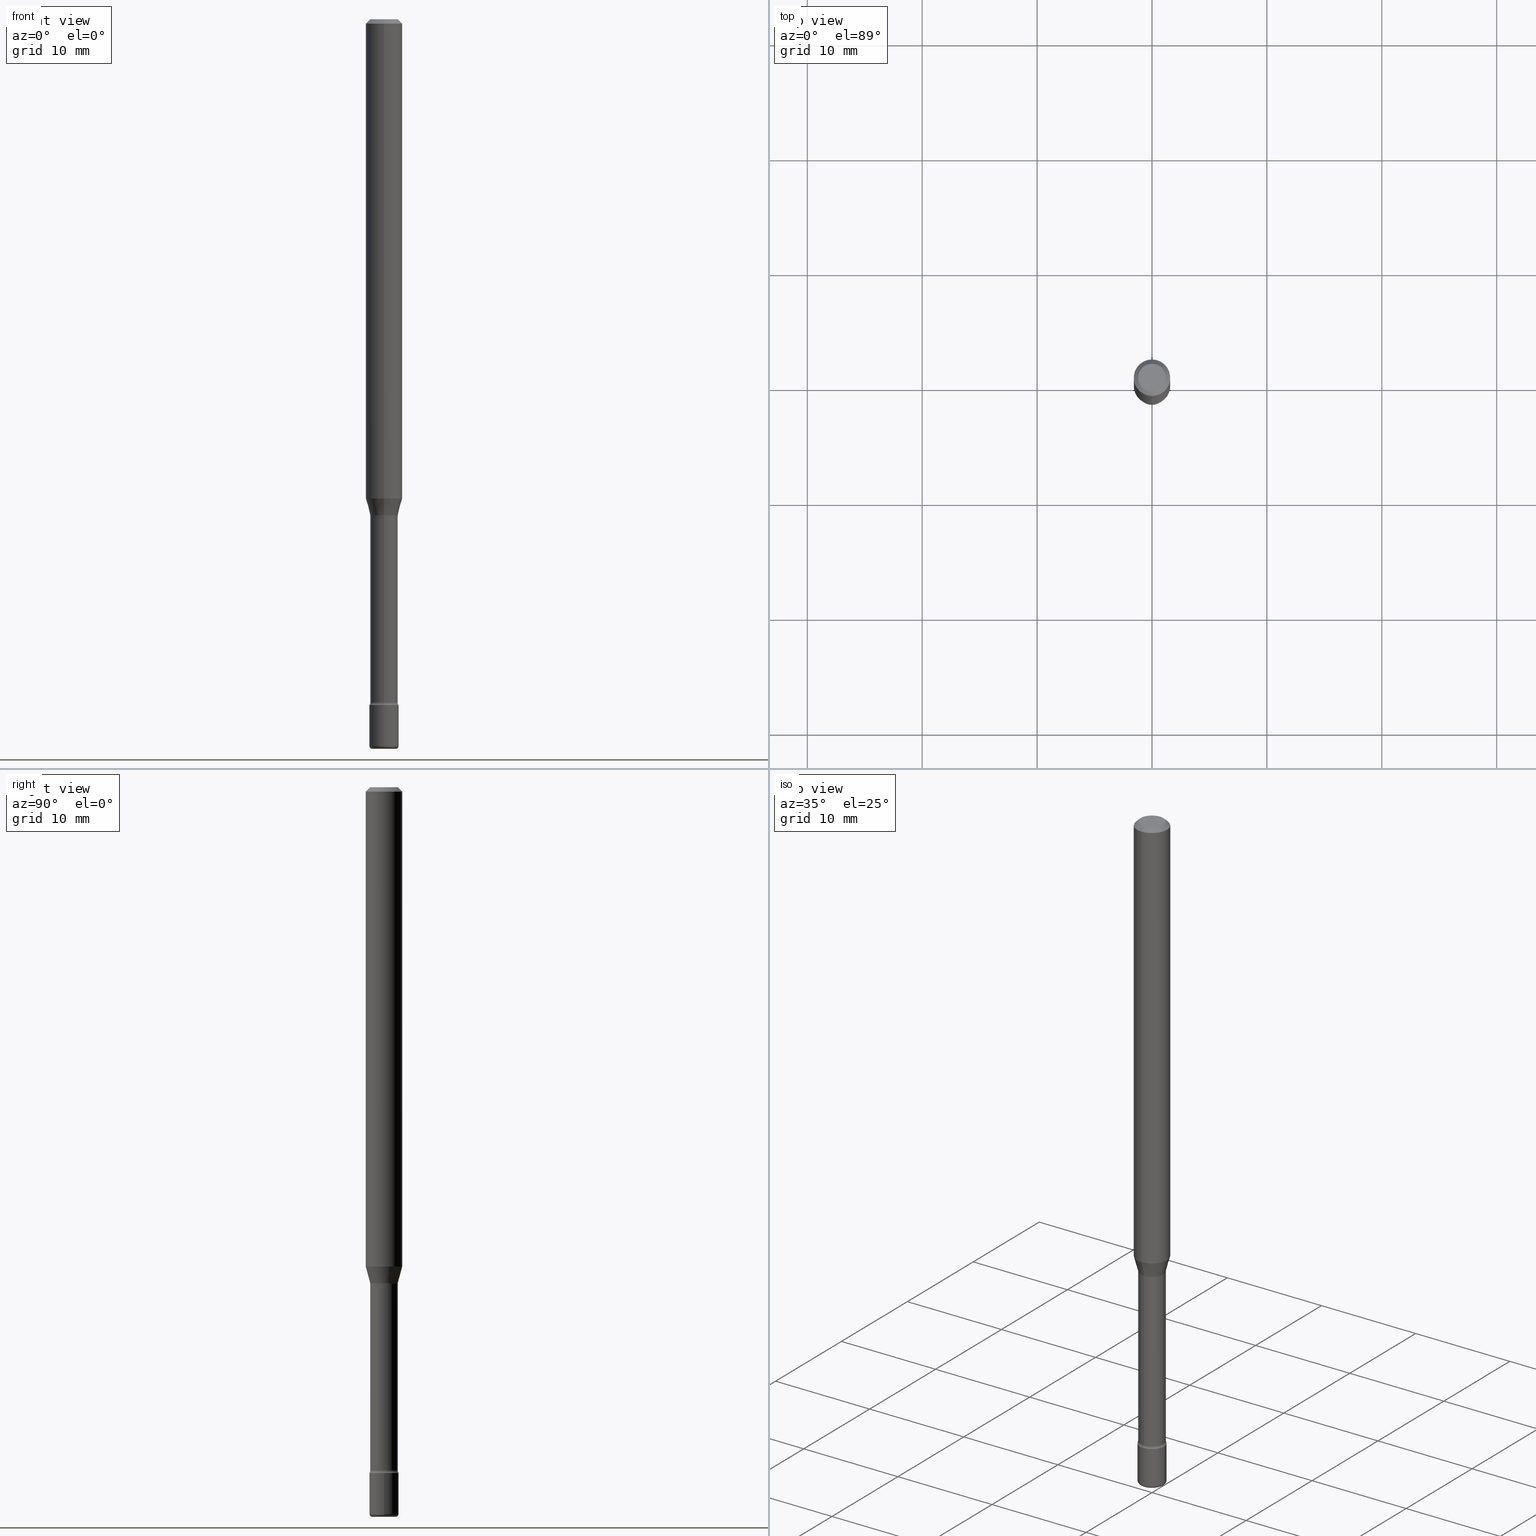
[diagram: canonical four-view strip — front | top / right | iso, engineering-drawing reading convention]
A machine part, canonical four-view strip (front | top / right | iso — engineering-drawing reading convention). The complete STEP part file that produces these views, byte-faithful:
ISO-10303-21;
HEADER;
FILE_DESCRIPTION (( 'STEP AP203' ),
    '1' );
FILE_NAME ('08861.STEP',
    '2024-03-06T20:06:30',
    ( '' ),
    ( '' ),
    'SwSTEP 2.0',
    'SolidWorks 2023',
    '' );
FILE_SCHEMA (( 'CONFIG_CONTROL_DESIGN' ));
ENDSEC;

DATA;
#1 = CARTESIAN_POINT ( 'NONE',  ( -1.169113584055446105E-44, 1.669184350826100908E-30, 4.780733988912460139E-16 ) ) ;
#2 = ORIENTED_EDGE ( 'NONE', *, *, #481, .F. ) ;
#3 = DIRECTION ( 'NONE',  ( -2.445468806185136877E-29, 3.491481338843145188E-15, 1.000000000000000000 ) ) ;
#4 = DIRECTION ( 'NONE',  ( -6.982962677686265133E-15, -1.000000000000000000, 5.463695987328526437E-15 ) ) ;
#5 = EDGE_CURVE ( 'NONE', #120, #82, #421, .T. ) ;
#6 = ORIENTED_EDGE ( 'NONE', *, *, #34, .T. ) ;
#7 = DIRECTION ( 'NONE',  ( -6.982962677686265922E-15, -1.000000000000000000, 5.749913744050249041E-15 ) ) ;
#8 = DIRECTION ( 'NONE',  ( -2.445541428082492260E-29, 3.491377340152750324E-15, 1.000000000000000000 ) ) ;
#9 = COORDINATED_UNIVERSAL_TIME_OFFSET ( 5, 0, .BEHIND. ) ;
#10 = VERTEX_POINT ( 'NONE', #271 ) ;
#11 = CARTESIAN_POINT ( 'NONE',  ( 5.725012483141114982E-29, -8.173314353297587961E-15, -2.341000000000000192 ) ) ;
#12 = LINE ( 'NONE', #122, #448 ) ;
#13 = DIRECTION ( 'NONE',  ( -2.445541428082492260E-29, 3.491377340152750324E-15, 1.000000000000000000 ) ) ;
#14 = ORIENTED_EDGE ( 'NONE', *, *, #495, .F. ) ;
#15 = DIRECTION ( 'NONE',  ( -2.445468806185136597E-29, 3.491481338843145583E-15, 1.000000000000000000 ) ) ;
#16 = ADVANCED_FACE ( 'NONE', ( #189 ), #193, .F. ) ;
#17 = EDGE_CURVE ( 'NONE', #452, #324, #310, .T. ) ;
#18 = ORIENTED_EDGE ( 'NONE', *, *, #515, .T. ) ;
#19 = ORIENTED_EDGE ( 'NONE', *, *, #283, .T. ) ;
#20 = CONICAL_SURFACE ( 'NONE', #164, 0.06250000000000000000, 0.7853981633974480570 ) ;
#21 = CC_DESIGN_APPROVAL ( #80, ( #423 ) ) ;
#22 = DIRECTION ( 'NONE',  ( -2.445468806185136597E-29, 3.491481338843145583E-15, 1.000000000000000000 ) ) ;
#23 = CALENDAR_DATE ( 2024, 6, 3 ) ;
#24 = LENGTH_MEASURE_WITH_UNIT ( LENGTH_MEASURE( 0.02539999999999999897 ), #64 );
#25 = APPROVAL_ROLE ( '' ) ;
#26 = VECTOR ( 'NONE', #406, 39.37007874015748143 ) ;
#27 = AXIS2_PLACEMENT_3D ( 'NONE', #369, #281, #509 ) ;
#28 = CARTESIAN_POINT ( 'NONE',  ( 3.339550858073043792E-16, 0.04699999999999405348, -1.701974787463811145 ) ) ;
#29 = AXIS2_PLACEMENT_3D ( 'NONE', #255, #449, #46 ) ;
#30 = EDGE_LOOP ( 'NONE', ( #351, #491, #84, #506 ) ) ;
#31 = FACE_OUTER_BOUND ( 'NONE', #391, .T. ) ;
#32 = CIRCLE ( 'NONE', #570, 0.04000000000000000083 ) ;
#33 = AXIS2_PLACEMENT_3D ( 'NONE', #280, #232, #55 ) ;
#34 = EDGE_CURVE ( 'NONE', #102, #455, #135, .T. ) ;
#35 = ORIENTED_EDGE ( 'NONE', *, *, #364, .F. ) ;
#36 = EDGE_CURVE ( 'NONE', #134, #82, #468, .T. ) ;
#37 = EDGE_LOOP ( 'NONE', ( #362, #129, #545, #233 ) ) ;
#38 = DIRECTION ( 'NONE',  ( -2.445541428082492260E-29, 3.491377340152750324E-15, 1.000000000000000000 ) ) ;
#39 = ORIENTED_EDGE ( 'NONE', *, *, #317, .T. ) ;
#40 = FACE_OUTER_BOUND ( 'NONE', #37, .T. ) ;
#41 = DIRECTION ( 'NONE',  ( -2.445468806185136597E-29, 3.491481338843145583E-15, 1.000000000000000000 ) ) ;
#42 = CARTESIAN_POINT ( 'NONE',  ( 3.339550858072470388E-16, 0.04700000000000000705, 3.139786639040668225E-16 ) ) ;
#43 = TOROIDAL_SURFACE ( 'NONE', #563, 0.04000000000000000083, 0.01000000000000009041 ) ;
#44 = LOCAL_TIME ( 15, 6, 30.00000000000000000, #382 ) ;
#45 = ORIENTED_EDGE ( 'NONE', *, *, #138, .T. ) ;
#46 = DIRECTION ( 'NONE',  ( -6.982962677686265922E-15, -1.000000000000000000, 3.491377340152749929E-15 ) ) ;
#47 = DIRECTION ( 'NONE',  ( 2.438088387897960049E-29, -3.491481338843145188E-15, -1.000000000000000000 ) ) ;
#48 = CARTESIAN_POINT ( 'NONE',  ( -3.281992458511972621E-16, -0.04700000000000817413, -2.340999999999999748 ) ) ;
#49 = ORIENTED_EDGE ( 'NONE', *, *, #408, .F. ) ;
#50 = DIRECTION ( 'NONE',  ( 4.937700262164546464E-15, 0.7071067811865449082, -0.7071067811865501263 ) ) ;
#51 = DIRECTION ( 'NONE',  ( -6.982962677686265922E-15, -1.000000000000000000, 3.483106191921935554E-15 ) ) ;
#52 = VERTEX_POINT ( 'NONE', #48 ) ;
#53 = DIRECTION ( 'NONE',  ( -6.982962677686265133E-15, -1.000000000000000000, 5.463695987328526437E-15 ) ) ;
#54 = CARTESIAN_POINT ( 'NONE',  ( 0.04000000000000000083, -8.973107040826881753E-15, -2.489999999999999769 ) ) ;
#55 = DIRECTION ( 'NONE',  ( -6.982962677686265922E-15, -1.000000000000000000, 5.749913744050249041E-15 ) ) ;
#56 = CARTESIAN_POINT ( 'NONE',  ( 5.747022355993856728E-29, -8.204736749358963615E-15, -2.350000000000000089 ) ) ;
#57 = CARTESIAN_POINT ( 'NONE',  ( 4.152755561837019932E-29, -5.928681682223378846E-15, -1.698092501787273001 ) ) ;
#58 = VERTEX_POINT ( 'NONE', #309 ) ;
#59 = CYLINDRICAL_SURFACE ( 'NONE', #332, 0.05000000000000000971 ) ;
#60 = ORIENTED_EDGE ( 'NONE', *, *, #467, .F. ) ;
#61 = CYLINDRICAL_SURFACE ( 'NONE', #308, 0.05000000000000000971 ) ;
#62 = ORIENTED_EDGE ( 'NONE', *, *, #63, .T. ) ;
#63 = EDGE_CURVE ( 'NONE', #452, #248, #561, .T. ) ;
#64 =( LENGTH_UNIT ( ) NAMED_UNIT ( * ) SI_UNIT ( $, .METRE. ) );
#65 = AXIS2_PLACEMENT_3D ( 'NONE', #415, #234, #155 ) ;
#66 = AXIS2_PLACEMENT_3D ( 'NONE', #91, #443, #348 ) ;
#67 = AXIS2_PLACEMENT_3D ( 'NONE', #418, #327, #108 ) ;
#68 = PERSON_AND_ORGANIZATION_ROLE ( 'design_supplier' ) ;
#69 = DIRECTION ( 'NONE',  ( -6.982962677686266711E-15, -1.000000000000000000, 5.812442539711199378E-15 ) ) ;
#70 = APPROVAL_DATE_TIME ( #336, #285 ) ;
#71 = DIRECTION ( 'NONE',  ( 1.000000000000000000, -6.982962677686259611E-15, 0.000000000000000000 ) ) ;
#72 = AXIS2_PLACEMENT_3D ( 'NONE', #57, #209, #7 ) ;
#73 = AXIS2_PLACEMENT_3D ( 'NONE', #352, #264, #238 ) ;
#74 = EDGE_CURVE ( 'NONE', #102, #120, #514, .T. ) ;
#75 = AXIS2_PLACEMENT_3D ( 'NONE', #542, #8, #358 ) ;
#76 = CARTESIAN_POINT ( 'NONE',  ( -1.169113584055446105E-44, 1.669184350826100908E-30, 4.780733988912460139E-16 ) ) ;
#77 = TOROIDAL_SURFACE ( 'NONE', #171, 0.04000000000000000083, 0.01000000000000009041 ) ;
#78 = CLOSED_SHELL ( 'NONE', ( #376, #277, #446, #87, #103, #562, #295, #214, #340, #16, #116, #99, #321, #276 ) ) ;
#79 = ORIENTED_EDGE ( 'NONE', *, *, #246, .F. ) ;
#80 = APPROVAL ( #159, 'UNSPECIFIED' ) ;
#81 = DIRECTION ( 'NONE',  ( -2.445541428082492260E-29, 3.491377340152750324E-15, 1.000000000000000000 ) ) ;
#82 = VERTEX_POINT ( 'NONE', #28 ) ;
#83 = DIRECTION ( 'NONE',  ( -6.982962677686265922E-15, -1.000000000000000000, 3.491377340152750324E-15 ) ) ;
#84 = ORIENTED_EDGE ( 'NONE', *, *, #5, .F. ) ;
#85 = CARTESIAN_POINT ( 'NONE',  ( 3.908379845742454334E-16, 0.04751111260565804573, -1.698092501787273223 ) ) ;
#86 = DIRECTION ( 'NONE',  ( -6.982962677686265133E-15, -1.000000000000000000, 3.491377340152749929E-15 ) ) ;
#87 = ADVANCED_FACE ( 'NONE', ( #31 ), #20, .T. ) ;
#88 = AXIS2_PLACEMENT_3D ( 'NONE', #1, #179, #345 ) ;
#89 = EDGE_CURVE ( 'NONE', #58, #447, #549, .T. ) ;
#90 = ORIENTED_EDGE ( 'NONE', *, *, #119, .T. ) ;
#91 = CARTESIAN_POINT ( 'NONE',  ( 5.724842475279404612E-29, -8.173557814231803142E-15, -2.341000000000000192 ) ) ;
#92 = CARTESIAN_POINT ( 'NONE',  ( -4.364351673553912750E-16, -0.06250000000000005551, -0.01499999999999981036 ) ) ;
#93 = ORIENTED_EDGE ( 'NONE', *, *, #166, .T. ) ;
#94 = CARTESIAN_POINT ( 'NONE',  ( 6.113672015462842613E-29, -8.728703347107864943E-15, -2.500000000000000000 ) ) ;
#95 = PLANE ( 'NONE',  #492 ) ;
#96 = CALENDAR_DATE ( 2024, 6, 3 ) ;
#97 = ORIENTED_EDGE ( 'NONE', *, *, #290, .F. ) ;
#98 = CARTESIAN_POINT ( 'NONE',  ( 4.364351673553919652E-16, 0.06249999999999995143, -0.01500000000000024578 ) ) ;
#99 = ADVANCED_FACE ( 'NONE', ( #115 ), #386, .F. ) ;
#100 = FACE_OUTER_BOUND ( 'NONE', #141, .T. ) ;
#101 = CIRCLE ( 'NONE', #259, 0.04700000000000000705 ) ;
#102 = VERTEX_POINT ( 'NONE', #525 ) ;
#103 = ADVANCED_FACE ( 'NONE', ( #117 ), #482, .T. ) ;
#104 = DIRECTION ( 'NONE',  ( -2.445468806185136597E-29, 3.491481338843145583E-15, 1.000000000000000000 ) ) ;
#105 = AXIS2_PLACEMENT_3D ( 'NONE', #434, #211, #564 ) ;
#106 = DIRECTION ( 'NONE',  ( -6.982962677686266711E-15, -1.000000000000000000, 5.812442539711199378E-15 ) ) ;
#107 = APPLICATION_PROTOCOL_DEFINITION ( 'international standard', 'config_control_design', 1994, #266 ) ;
#108 = DIRECTION ( 'NONE',  ( -6.982962677686265133E-15, -1.000000000000000000, 3.491377340152749929E-15 ) ) ;
#109 = CARTESIAN_POINT ( 'NONE',  ( 4.152755561837019932E-29, -5.928681682223378846E-15, -1.698092501787273001 ) ) ;
#110 = APPROVAL_PERSON_ORGANIZATION ( #383, #331, #245 ) ;
#111 = CARTESIAN_POINT ( 'NONE',  ( 4.162249852294645006E-29, -5.942236206462443190E-15, -1.701974787463810923 ) ) ;
#112 = DIRECTION ( 'NONE',  ( -2.445541428082492260E-29, 3.491377340152750324E-15, 1.000000000000000000 ) ) ;
#113 = ORIENTED_EDGE ( 'NONE', *, *, #174, .F. ) ;
#114 = CC_DESIGN_SECURITY_CLASSIFICATION ( #261, ( #372 ) ) ;
#115 = FACE_OUTER_BOUND ( 'NONE', #442, .T. ) ;
#116 = ADVANCED_FACE ( 'NONE', ( #494 ), #95, .F. ) ;
#117 = FACE_OUTER_BOUND ( 'NONE', #488, .T. ) ;
#118 = PRODUCT ( '08861', '08861', '', ( #279 ) ) ;
#119 = EDGE_CURVE ( 'NONE', #304, #502, #146, .T. ) ;
#120 = VERTEX_POINT ( 'NONE', #354 ) ;
#121 = CIRCLE ( 'NONE', #460, 0.01500000000000003587 ) ;
#122 = CARTESIAN_POINT ( 'NONE',  ( 3.375867592983881173E-16, 0.04751111260565804573, -1.698092501787273223 ) ) ;
#123 = AXIS2_PLACEMENT_3D ( 'NONE', #154, #236, #465 ) ;
#124 = EDGE_LOOP ( 'NONE', ( #301, #314 ) ) ;
#125 = DIRECTION ( 'NONE',  ( -2.445541428082492260E-29, 3.491377340152750324E-15, 1.000000000000000000 ) ) ;
#126 = ORIENTED_EDGE ( 'NONE', *, *, #480, .T. ) ;
#127 = CARTESIAN_POINT ( 'NONE',  ( -3.281992458512545531E-16, -0.04700000000000000705, 6.421681338784253533E-16 ) ) ;
#128 = DIRECTION ( 'NONE',  ( -6.982962677686265922E-15, -1.000000000000000000, 3.491377340152750324E-15 ) ) ;
#129 = ORIENTED_EDGE ( 'NONE', *, *, #365, .T. ) ;
#130 = DIRECTION ( 'NONE',  ( -2.445541428082492260E-29, 3.491377340152750324E-15, 1.000000000000000000 ) ) ;
#131 = LINE ( 'NONE', #170, #26 ) ;
#132 = CIRCLE ( 'NONE', #306, 0.01500000000000003587 ) ;
#133 = AXIS2_PLACEMENT_3D ( 'NONE', #426, #112, #511 ) ;
#134 = VERTEX_POINT ( 'NONE', #444 ) ;
#135 = CIRCLE ( 'NONE', #33, 0.04751111260566397154 ) ;
#136 = FACE_OUTER_BOUND ( 'NONE', #366, .T. ) ;
#137 = CARTESIAN_POINT ( 'NONE',  ( 0.04000000000000000083, -9.008021854215314980E-15, -2.500000000000000000 ) ) ;
#138 = EDGE_CURVE ( 'NONE', #475, #416, #287, .T. ) ;
#139 = PERSON_AND_ORGANIZATION ( #291, #323 ) ;
#140 = EDGE_CURVE ( 'NONE', #267, #335, #431, .T. ) ;
#141 = EDGE_LOOP ( 'NONE', ( #341, #126, #250, #435 ) ) ;
#142 = APPLICATION_CONTEXT ( 'configuration controlled 3d designs of mechanical parts and assemblies' ) ;
#143 = DIRECTION ( 'NONE',  ( -2.445541428082492260E-29, 3.491377340152750324E-15, 1.000000000000000000 ) ) ;
#144 = DIRECTION ( 'NONE',  ( 2.445541428082491980E-29, -3.491377340152750324E-15, -1.000000000000000000 ) ) ;
#145 = DIRECTION ( 'NONE',  ( 7.105427357600997914E-15, 1.000000000000000000, 0.000000000000000000 ) ) ;
#146 = CIRCLE ( 'NONE', #325, 0.06250000000000000000 ) ;
#147 = EDGE_LOOP ( 'NONE', ( #393, #224 ) ) ;
#148 = VECTOR ( 'NONE', #125, 39.37007874015748143 ) ;
#149 = CARTESIAN_POINT ( 'NONE',  ( -4.364351673553512403E-16, -0.06250000000000570377, -1.642153212482682312 ) ) ;
#150 = TOROIDAL_SURFACE ( 'NONE', #371, 0.06200000000000000649, 0.01500000000000003587 ) ;
#151 = ORIENTED_EDGE ( 'NONE', *, *, #461, .F. ) ;
#152 = DIRECTION ( 'NONE',  ( 1.000000000000000000, -6.982962677686267499E-15, 4.876176775795936353E-29 ) ) ;
#153 = SECURITY_CLASSIFICATION_LEVEL ( 'unclassified' ) ;
#154 = CARTESIAN_POINT ( 'NONE',  ( 6.089217327400989947E-29, -8.693788533719431716E-15, -2.489999999999999769 ) ) ;
#155 = DIRECTION ( 'NONE',  ( -6.982962677686265922E-15, -1.000000000000000000, 3.491377340152749929E-15 ) ) ;
#156 = APPROVAL_DATE_TIME ( #474, #331 ) ;
#157 = PLANE ( 'NONE',  #27 ) ;
#158 = EDGE_CURVE ( 'NONE', #502, #304, #218, .T. ) ;
#159 = APPROVAL_STATUS ( 'not_yet_approved' ) ;
#160 = ORIENTED_EDGE ( 'NONE', *, *, #350, .F. ) ;
#161 = PERSON_AND_ORGANIZATION_ROLE ( 'creator' ) ;
#162 = ORIENTED_EDGE ( 'NONE', *, *, #138, .F. ) ;
#163 = DIRECTION ( 'NONE',  ( 2.445541428082492260E-29, -3.491377340152750324E-15, -1.000000000000000000 ) ) ;
#164 = AXIS2_PLACEMENT_3D ( 'NONE', #384, #163, #292 ) ;
#165 = LOCAL_TIME ( 15, 6, 30.00000000000000000, #199 ) ;
#166 = EDGE_CURVE ( 'NONE', #248, #523, #294, .T. ) ;
#167 = DIRECTION ( 'NONE',  ( -2.445468806185136597E-29, 3.491481338843145583E-15, 1.000000000000000000 ) ) ;
#168 = ORIENTED_EDGE ( 'NONE', *, *, #206, .T. ) ;
#169 = ORIENTED_EDGE ( 'NONE', *, *, #290, .T. ) ;
#170 = CARTESIAN_POINT ( 'NONE',  ( 0.05000000000000000971, -3.491481338843134341E-16, 2.438088387897968597E-30 ) ) ;
#171 = AXIS2_PLACEMENT_3D ( 'NONE', #409, #302, #497 ) ;
#172 = CONICAL_SURFACE ( 'NONE', #505, 0.06250000000000000000, 0.7853981633974480570 ) ;
#173 = EDGE_LOOP ( 'NONE', ( #263, #213, #538, #60 ) ) ;
#174 = EDGE_CURVE ( 'NONE', #335, #447, #131, .T. ) ;
#175 = CARTESIAN_POINT ( 'NONE',  ( 4.162126251656327251E-29, -5.942413209611424938E-15, -1.701974787463810923 ) ) ;
#176 = CARTESIAN_POINT ( 'NONE',  ( 6.629452896351596937E-46, -9.454610252272620531E-32, -2.709412713493322385E-17 ) ) ;
#177 = ORIENTED_EDGE ( 'NONE', *, *, #140, .T. ) ;
#178 = DIRECTION ( 'NONE',  ( -1.807323732225336845E-15, -0.2588190451025191297, 0.9659258262890687563 ) ) ;
#179 = DIRECTION ( 'NONE',  ( -2.445541428082492260E-29, 3.491377340152750324E-15, 1.000000000000000000 ) ) ;
#180 = EDGE_LOOP ( 'NONE', ( #97, #191, #221, #311 ) ) ;
#181 = CARTESIAN_POINT ( 'NONE',  ( 4.405364961713196496E-16, 0.06199999999999188105, -2.341000000000000192 ) ) ;
#182 = DIRECTION ( 'NONE',  ( 1.000000000000000000, -6.982962677686261977E-15, 4.883557194083110659E-29 ) ) ;
#183 = LOCAL_TIME ( 15, 6, 30.00000000000000000, #519 ) ;
#184 = COORDINATED_UNIVERSAL_TIME_OFFSET ( 5, 0, .BEHIND. ) ;
#185 = ORIENTED_EDGE ( 'NONE', *, *, #63, .F. ) ;
#186 = LINE ( 'NONE', #299, #410 ) ;
#187 = DIRECTION ( 'NONE',  ( 1.839019923739607021E-15, 0.2588190451025259020, 0.9659258262890669799 ) ) ;
#188 = EDGE_CURVE ( 'NONE', #335, #10, #557, .T. ) ;
#189 = FACE_OUTER_BOUND ( 'NONE', #124, .T. ) ;
#190 =( NAMED_UNIT ( * ) SI_UNIT ( $, .STERADIAN. ) SOLID_ANGLE_UNIT ( ) );
#191 = ORIENTED_EDGE ( 'NONE', *, *, #34, .F. ) ;
#192 = AXIS2_PLACEMENT_3D ( 'NONE', #438, #167, #289 ) ;
#193 = PLANE ( 'NONE',  #397 ) ;
#194 = CIRCLE ( 'NONE', #231, 0.05000000000000000278 ) ;
#195 = CARTESIAN_POINT ( 'NONE',  ( -0.04000000000000000083, -8.391501709321602173E-15, -2.500000000000000000 ) ) ;
#196 = PRODUCT_RELATED_PRODUCT_CATEGORY ( 'detail', '', ( #118 ) ) ;
#197 = CALENDAR_DATE ( 2024, 6, 3 ) ;
#198 = CARTESIAN_POINT ( 'NONE',  ( 0.000000000000000000, 0.000000000000000000, 0.000000000000000000 ) ) ;
#199 = COORDINATED_UNIVERSAL_TIME_OFFSET ( 5, 0, .BEHIND. ) ;
#200 = DIRECTION ( 'NONE',  ( -6.982962677686265922E-15, -1.000000000000000000, 5.749913744050249041E-15 ) ) ;
#201 = EDGE_CURVE ( 'NONE', #52, #134, #203, .T. ) ;
#202 = PERSON_AND_ORGANIZATION ( #291, #323 ) ;
#203 = CIRCLE ( 'NONE', #75, 0.04700000000000000705 ) ;
#204 = PERSON_AND_ORGANIZATION_ROLE ( 'design_owner' ) ;
#205 = APPROVAL_PERSON_ORGANIZATION ( #202, #285, #377 ) ;
#206 = EDGE_CURVE ( 'NONE', #455, #304, #12, .T. ) ;
#207 = UNCERTAINTY_MEASURE_WITH_UNIT (LENGTH_MEASURE( 1.000000000000000082E-05 ), #367, 'distance_accuracy_value', 'NONE');
#208 = CARTESIAN_POINT ( 'NONE',  ( -4.287811248607203282E-16, -0.06250000000000005551, -0.01499999999999981036 ) ) ;
#209 = DIRECTION ( 'NONE',  ( -2.445541428082492260E-29, 3.491377340152750324E-15, 1.000000000000000000 ) ) ;
#210 = CIRCLE ( 'NONE', #322, 0.04699999999999999317 ) ;
#211 = DIRECTION ( 'NONE',  ( -2.445541428082492260E-29, 3.491377340152750324E-15, 1.000000000000000000 ) ) ;
#212 = DIRECTION ( 'NONE',  ( -6.982962677686265922E-15, -1.000000000000000000, 3.491377340152751112E-15 ) ) ;
#213 = ORIENTED_EDGE ( 'NONE', *, *, #353, .T. ) ;
#214 = ADVANCED_FACE ( 'NONE', ( #440 ), #215, .T. ) ;
#215 = CYLINDRICAL_SURFACE ( 'NONE', #88, 0.06250000000000000000 ) ;
#216 = ORIENTED_EDGE ( 'NONE', *, *, #467, .T. ) ;
#217 = CARTESIAN_POINT ( 'NONE',  ( 3.668312142123745187E-31, -5.237066010229135864E-17, -0.01500000000000002720 ) ) ;
#218 = CIRCLE ( 'NONE', #237, 0.06250000000000000000 ) ;
#219 = FACE_OUTER_BOUND ( 'NONE', #30, .T. ) ;
#220 = AXIS2_PLACEMENT_3D ( 'NONE', #56, #143, #53 ) ;
#221 = ORIENTED_EDGE ( 'NONE', *, *, #74, .T. ) ;
#222 = DIRECTION ( 'NONE',  ( 7.105427357601001859E-15, 1.000000000000000000, 0.000000000000000000 ) ) ;
#223 = CARTESIAN_POINT ( 'NONE',  ( 3.491481338843707252E-16, 0.04999999999999180100, -2.350000000000000533 ) ) ;
#224 = ORIENTED_EDGE ( 'NONE', *, *, #89, .T. ) ;
#225 = LINE ( 'NONE', #98, #346 ) ;
#226 = EDGE_CURVE ( 'NONE', #502, #248, #484, .T. ) ;
#227 = DIRECTION ( 'NONE',  ( -2.445468806185136597E-29, 3.491481338843145583E-15, 1.000000000000000000 ) ) ;
#228 = ORIENTED_EDGE ( 'NONE', *, *, #140, .F. ) ;
#229 = CARTESIAN_POINT ( 'NONE',  ( -3.773273898774340269E-16, -0.04750000000000000749, 1.387462965223224144E-16 ) ) ;
#230 = CONICAL_SURFACE ( 'NONE', #72, 0.04751111260566397154, 0.2617993877991512397 ) ;
#231 = AXIS2_PLACEMENT_3D ( 'NONE', #422, #503, #275 ) ;
#232 = DIRECTION ( 'NONE',  ( -2.445541428082492260E-29, 3.491377340152750324E-15, 1.000000000000000000 ) ) ;
#233 = ORIENTED_EDGE ( 'NONE', *, *, #283, .F. ) ;
#234 = DIRECTION ( 'NONE',  ( -2.445541428082492260E-29, 3.491377340152750324E-15, 1.000000000000000000 ) ) ;
#235 = ORIENTED_EDGE ( 'NONE', *, *, #353, .F. ) ;
#236 = DIRECTION ( 'NONE',  ( -2.445468806185136597E-29, 3.491481338843145583E-15, 1.000000000000000000 ) ) ;
#237 = AXIS2_PLACEMENT_3D ( 'NONE', #537, #256, #454 ) ;
#238 = DIRECTION ( 'NONE',  ( -6.982962677686272233E-15, -1.000000000000000000, 0.000000000000000000 ) ) ;
#239 = APPROVAL_STATUS ( 'not_yet_approved' ) ;
#240 = CARTESIAN_POINT ( 'NONE',  ( 4.405364961713037245E-16, 0.06199999999999406680, -1.701974787463811145 ) ) ;
#241 = CC_DESIGN_DATE_AND_TIME_ASSIGNMENT ( #553, #555, ( #261 ) ) ;
#242 = AXIS2_PLACEMENT_3D ( 'NONE', #175, #130, #83 ) ;
#243 = ORIENTED_EDGE ( 'NONE', *, *, #74, .F. ) ;
#244 = AXIS2_PLACEMENT_3D ( 'NONE', #253, #81, #51 ) ;
#245 = APPROVAL_ROLE ( '' ) ;
#246 = EDGE_CURVE ( 'NONE', #324, #452, #476, .T. ) ;
#247 = CARTESIAN_POINT ( 'NONE',  ( -4.329436860165069019E-16, -0.06200000000000594619, -1.701974787463810701 ) ) ;
#248 = VERTEX_POINT ( 'NONE', #92 ) ;
#249 = DIRECTION ( 'NONE',  ( -2.445541428082492260E-29, 3.491377340152750324E-15, 1.000000000000000000 ) ) ;
#250 = ORIENTED_EDGE ( 'NONE', *, *, #461, .T. ) ;
#251 = ADVANCED_FACE ( 'NONE', ( #307 ), #43, .T. ) ;
#252 = ADVANCED_FACE ( 'NONE', ( #260 ), #569, .T. ) ;
#253 = CARTESIAN_POINT ( 'NONE',  ( 3.668312142123745187E-31, -5.237066010229135864E-17, -0.01500000000000002720 ) ) ;
#254 = ORIENTED_EDGE ( 'NONE', *, *, #515, .F. ) ;
#255 = CARTESIAN_POINT ( 'NONE',  ( -1.169113584055446105E-44, 1.669184350826100908E-30, 4.780733988912460139E-16 ) ) ;
#256 = DIRECTION ( 'NONE',  ( -2.445541428082492260E-29, 3.491377340152750324E-15, 1.000000000000000000 ) ) ;
#257 = ORIENTED_EDGE ( 'NONE', *, *, #350, .T. ) ;
#258 = CARTESIAN_POINT ( 'NONE',  ( -3.317683261006594313E-16, -0.04751111260566989736, -1.698092501787272779 ) ) ;
#259 = AXIS2_PLACEMENT_3D ( 'NONE', #11, #453, #363 ) ;
#260 = FACE_OUTER_BOUND ( 'NONE', #529, .T. ) ;
#261 = SECURITY_CLASSIFICATION ( '', '', #153 ) ;
#262 = MANIFOLD_SOLID_BREP ( 'Body-Move/Copy2[1]', #522 ) ;
#263 = ORIENTED_EDGE ( 'NONE', *, *, #365, .F. ) ;
#264 = DIRECTION ( 'NONE',  ( -1.000000000000000000, 6.982962677686265922E-15, -4.883557194083112340E-29 ) ) ;
#265 = CARTESIAN_POINT ( 'NONE',  ( 6.089217327400989947E-29, -8.693788533719431716E-15, -2.489999999999999769 ) ) ;
#266 = APPLICATION_CONTEXT ( 'configuration controlled 3d designs of mechanical parts and assemblies' ) ;
#267 = VERTEX_POINT ( 'NONE', #137 ) ;
#268 = DIRECTION ( 'NONE',  ( 1.000000000000000000, -6.982962677686259611E-15, 0.000000000000000000 ) ) ;
#269 = DIRECTION ( 'NONE',  ( -2.445541428082492260E-29, 3.491377340152750324E-15, 1.000000000000000000 ) ) ;
#270 = SHAPE_DEFINITION_REPRESENTATION ( #359, #441 ) ;
#271 = CARTESIAN_POINT ( 'NONE',  ( -0.05000000000000004441, -8.338517165839381307E-15, -2.489999999999999769 ) ) ;
#272 = DIRECTION ( 'NONE',  ( -1.000000000000000000, 7.105427357600958471E-15, 0.000000000000000000 ) ) ;
#273 = AXIS2_PLACEMENT_3D ( 'NONE', #76, #249, #212 ) ;
#274 = ORIENTED_EDGE ( 'NONE', *, *, #188, .F. ) ;
#275 = DIRECTION ( 'NONE',  ( 1.000000000000000000, -6.982962677686274599E-15, 0.000000000000000000 ) ) ;
#276 = ADVANCED_FACE ( 'NONE', ( #498 ), #150, .F. ) ;
#277 = ADVANCED_FACE ( 'NONE', ( #219 ), #424, .T. ) ;
#278 = ORIENTED_EDGE ( 'NONE', *, *, #364, .T. ) ;
#279 = MECHANICAL_CONTEXT ( 'NONE', #266, 'mechanical' ) ;
#280 = CARTESIAN_POINT ( 'NONE',  ( 4.152755561837019932E-29, -5.928681682223378846E-15, -1.698092501787273001 ) ) ;
#281 = DIRECTION ( 'NONE',  ( -2.438088387897960049E-29, 3.491481338843145188E-15, 1.000000000000000000 ) ) ;
#282 = PERSON_AND_ORGANIZATION ( #291, #323 ) ;
#283 = EDGE_CURVE ( 'NONE', #82, #120, #210, .T. ) ;
#284 = FACE_OUTER_BOUND ( 'NONE', #147, .T. ) ;
#285 = APPROVAL ( #239, 'UNSPECIFIED' ) ;
#286 = DATE_TIME_ROLE ( 'creation_date' ) ;
#287 = CIRCLE ( 'NONE', #470, 0.05000000000000000278 ) ;
#288 = APPROVAL_PERSON_ORGANIZATION ( #334, #80, #25 ) ;
#289 = DIRECTION ( 'NONE',  ( 1.000000000000000000, -6.982962677686274599E-15, 0.000000000000000000 ) ) ;
#290 = EDGE_CURVE ( 'NONE', #455, #82, #132, .T. ) ;
#291 = PERSON ( 'UNSPECIFIED', 'UNSPECIFIED', 'UNSPECIFIED', ('UNSPECIFIED'), ('UNSPECIFIED'), ('UNSPECIFIED') ) ;
#292 = DIRECTION ( 'NONE',  ( 6.982962677686265922E-15, 1.000000000000000000, -3.483106191921935554E-15 ) ) ;
#293 = EDGE_CURVE ( 'NONE', #304, #523, #370, .T. ) ;
#294 = CIRCLE ( 'NONE', #244, 0.06250000000000000000 ) ;
#295 = ADVANCED_FACE ( 'NONE', ( #100 ), #230, .T. ) ;
#296 = AXIS2_PLACEMENT_3D ( 'NONE', #198, #507, #378 ) ;
#297 = DIRECTION ( 'NONE',  ( -2.445541428082492260E-29, 3.491377340152750324E-15, 1.000000000000000000 ) ) ;
#298 = EDGE_LOOP ( 'NONE', ( #185, #79, #404, #257 ) ) ;
#299 = CARTESIAN_POINT ( 'NONE',  ( -0.05000000000000000971, 3.552713678800501620E-16, -2.459467545127453311E-30 ) ) ;
#300 = DIRECTION ( 'NONE',  ( -1.000000000000000000, 6.982962677686265922E-15, -4.876176775795935793E-29 ) ) ;
#301 = ORIENTED_EDGE ( 'NONE', *, *, #246, .T. ) ;
#302 = DIRECTION ( 'NONE',  ( -2.445468806185136597E-29, 3.491481338843145583E-15, 1.000000000000000000 ) ) ;
#303 = DIRECTION ( 'NONE',  ( -6.982962677686265922E-15, -1.000000000000000000, 4.370956789862821150E-15 ) ) ;
#304 = VERTEX_POINT ( 'NONE', #459 ) ;
#305 = CARTESIAN_POINT ( 'NONE',  ( 3.552713678801077488E-16, 0.04999999999999183570, -2.350000000000000533 ) ) ;
#306 = AXIS2_PLACEMENT_3D ( 'NONE', #240, #427, #145 ) ;
#307 = FACE_OUTER_BOUND ( 'NONE', #407, .T. ) ;
#308 = AXIS2_PLACEMENT_3D ( 'NONE', #546, #551, #473 ) ;
#309 = CARTESIAN_POINT ( 'NONE',  ( -0.05000000000000000278, -8.094113472120361341E-15, -2.350000000000000089 ) ) ;
#310 = CIRCLE ( 'NONE', #67, 0.04750000000000000749 ) ;
#311 = ORIENTED_EDGE ( 'NONE', *, *, #5, .T. ) ;
#312 = DIRECTION ( 'NONE',  ( 1.000000000000000000, -6.982962677686273021E-15, 0.000000000000000000 ) ) ;
#313 = PERSON_AND_ORGANIZATION ( #291, #323 ) ;
#314 = ORIENTED_EDGE ( 'NONE', *, *, #17, .T. ) ;
#315 = CARTESIAN_POINT ( 'NONE',  ( 3.668312142123745187E-31, -5.237066010229135864E-17, -0.01500000000000002720 ) ) ;
#316 = DIRECTION ( 'NONE',  ( -2.445541428082492260E-29, 3.491377340152750324E-15, 1.000000000000000000 ) ) ;
#317 = EDGE_CURVE ( 'NONE', #496, #267, #32, .T. ) ;
#318 = DIRECTION ( 'NONE',  ( 6.982962677686265922E-15, 1.000000000000000000, -3.491377340152750324E-15 ) ) ;
#319 = DIRECTION ( 'NONE',  ( -2.445541428082492260E-29, 3.491377340152750324E-15, 1.000000000000000000 ) ) ;
#320 = CC_DESIGN_PERSON_AND_ORGANIZATION_ASSIGNMENT ( #139, #161, ( #372 ) ) ;
#321 = ADVANCED_FACE ( 'NONE', ( #40 ), #486, .T. ) ;
#322 = AXIS2_PLACEMENT_3D ( 'NONE', #111, #316, #69 ) ;
#323 = ORGANIZATION ( 'UNSPECIFIED', 'UNSPECIFIED', '' ) ;
#324 = VERTEX_POINT ( 'NONE', #456 ) ;
#325 = AXIS2_PLACEMENT_3D ( 'NONE', #398, #297, #303 ) ;
#326 = CARTESIAN_POINT ( 'NONE',  ( 4.440892098500625669E-16, 0.06250000000000000000, 2.598623151316991680E-16 ) ) ;
#327 = DIRECTION ( 'NONE',  ( -2.445541428082492260E-29, 3.491377340152750324E-15, 1.000000000000000000 ) ) ;
#328 = DATE_AND_TIME ( #197, #44 ) ;
#329 = FACE_OUTER_BOUND ( 'NONE', #464, .T. ) ;
#330 = APPROVAL_STATUS ( 'not_yet_approved' ) ;
#331 = APPROVAL ( #330, 'UNSPECIFIED' ) ;
#332 = AXIS2_PLACEMENT_3D ( 'NONE', #428, #22, #152 ) ;
#333 = CARTESIAN_POINT ( 'NONE',  ( 4.440892098501030453E-16, 0.06249999999999995143, -0.01500000000000024578 ) ) ;
#334 = PERSON_AND_ORGANIZATION ( #291, #323 ) ;
#335 = VERTEX_POINT ( 'NONE', #344 ) ;
#336 = DATE_AND_TIME ( #471, #165 ) ;
#337 = CC_DESIGN_DATE_AND_TIME_ASSIGNMENT ( #499, #286, ( #423 ) ) ;
#338 = EDGE_CURVE ( 'NONE', #324, #523, #225, .T. ) ;
#339 = LOCAL_TIME ( 15, 6, 30.00000000000000000, #9 ) ;
#340 = ADVANCED_FACE ( 'NONE', ( #544 ), #172, .T. ) ;
#341 = ORIENTED_EDGE ( 'NONE', *, *, #206, .F. ) ;
#342 = EDGE_LOOP ( 'NONE', ( #355, #90, #368, #160 ) ) ;
#343 = AXIS2_PLACEMENT_3D ( 'NONE', #356, #540, #272 ) ;
#344 = CARTESIAN_POINT ( 'NONE',  ( 0.05000000000000004441, -9.042936667603745051E-15, -2.489999999999999769 ) ) ;
#345 = DIRECTION ( 'NONE',  ( -6.982962677686265922E-15, -1.000000000000000000, 3.491377340152751112E-15 ) ) ;
#346 = VECTOR ( 'NONE', #50, 39.37007874015748143 ) ;
#347 = ORIENTED_EDGE ( 'NONE', *, *, #89, .F. ) ;
#348 = DIRECTION ( 'NONE',  ( -6.982962677686265922E-15, -1.000000000000000000, 3.491377340152750324E-15 ) ) ;
#349 = CARTESIAN_POINT ( 'NONE',  ( 4.162126251656327251E-29, -5.942413209611424938E-15, -1.701974787463810923 ) ) ;
#350 = EDGE_CURVE ( 'NONE', #523, #248, #394, .T. ) ;
#351 = ORIENTED_EDGE ( 'NONE', *, *, #201, .T. ) ;
#352 = CARTESIAN_POINT ( 'NONE',  ( -4.329436860164915685E-16, -0.06200000000000822215, -2.340999999999999748 ) ) ;
#353 = EDGE_CURVE ( 'NONE', #134, #416, #121, .T. ) ;
#354 = CARTESIAN_POINT ( 'NONE',  ( -3.281992458512128914E-16, -0.04700000000000593980, -1.701974787463810701 ) ) ;
#355 = ORIENTED_EDGE ( 'NONE', *, *, #293, .F. ) ;
#356 = CARTESIAN_POINT ( 'NONE',  ( -0.04000000000000000083, -8.409571439415391389E-15, -2.489999999999999769 ) ) ;
#357 = CC_DESIGN_APPROVAL ( #331, ( #261 ) ) ;
#358 = DIRECTION ( 'NONE',  ( -6.982962677686265922E-15, -1.000000000000000000, 5.812442539711197800E-15 ) ) ;
#359 = PRODUCT_DEFINITION_SHAPE ( 'NONE', 'NONE',  #423 ) ;
#360 = VECTOR ( 'NONE', #13, 39.37007874015748143 ) ;
#361 = PERSON_AND_ORGANIZATION ( #291, #323 ) ;
#362 = ORIENTED_EDGE ( 'NONE', *, *, #36, .F. ) ;
#363 = DIRECTION ( 'NONE',  ( -6.982962677686265922E-15, -1.000000000000000000, 5.812442539711197800E-15 ) ) ;
#364 = EDGE_CURVE ( 'NONE', #496, #10, #528, .T. ) ;
#365 = EDGE_CURVE ( 'NONE', #134, #52, #101, .T. ) ;
#366 = EDGE_LOOP ( 'NONE', ( #571, #169, #19, #243 ) ) ;
#367 =( CONVERSION_BASED_UNIT ( 'INCH', #24 ) LENGTH_UNIT ( ) NAMED_UNIT ( #375 ) );
#368 = ORIENTED_EDGE ( 'NONE', *, *, #226, .T. ) ;
#369 = CARTESIAN_POINT ( 'NONE',  ( 5.746851694535070554E-29, -8.204981146281391784E-15, -2.350000000000000089 ) ) ;
#370 = LINE ( 'NONE', #326, #539 ) ;
#371 = AXIS2_PLACEMENT_3D ( 'NONE', #349, #534, #128 ) ;
#372 = PRODUCT_DEFINITION_FORMATION_WITH_SPECIFIED_SOURCE ( 'ANY', '', #118, .NOT_KNOWN. ) ;
#373 = ORIENTED_EDGE ( 'NONE', *, *, #188, .T. ) ;
#374 = FACE_OUTER_BOUND ( 'NONE', #466, .T. ) ;
#375 = DIMENSIONAL_EXPONENTS ( 1.000000000000000000, 0.000000000000000000, 0.000000000000000000, 0.000000000000000000, 0.000000000000000000, 0.000000000000000000, 0.000000000000000000 ) ;
#376 = ADVANCED_FACE ( 'NONE', ( #136 ), #429, .F. ) ;
#377 = APPROVAL_ROLE ( '' ) ;
#378 = DIRECTION ( 'NONE',  ( 1.000000000000000000, 0.000000000000000000, 0.000000000000000000 ) ) ;
#379 = APPROVAL_DATE_TIME ( #328, #80 ) ;
#380 = AXIS2_PLACEMENT_3D ( 'NONE', #315, #536, #533 ) ;
#381 = TOROIDAL_SURFACE ( 'NONE', #66, 0.06200000000000004813, 0.01500000000000004281 ) ;
#382 = COORDINATED_UNIVERSAL_TIME_OFFSET ( 5, 0, .BEHIND. ) ;
#383 = PERSON_AND_ORGANIZATION ( #291, #323 ) ;
#384 = CARTESIAN_POINT ( 'NONE',  ( 3.668312142123745187E-31, -5.237066010229135864E-17, -0.01500000000000002720 ) ) ;
#385 = EDGE_CURVE ( 'NONE', #52, #120, #402, .T. ) ;
#386 = TOROIDAL_SURFACE ( 'NONE', #105, 0.06200000000000004813, 0.01500000000000004281 ) ;
#387 = CIRCLE ( 'NONE', #123, 0.05000000000000000971 ) ;
#388 = AXIS2_PLACEMENT_3D ( 'NONE', #500, #413, #106 ) ;
#389 = DIRECTION ( 'NONE',  ( -6.982962677686268288E-15, -1.000000000000000000, 0.000000000000000000 ) ) ;
#390 = ORIENTED_EDGE ( 'NONE', *, *, #317, .F. ) ;
#391 = EDGE_LOOP ( 'NONE', ( #439, #62, #93, #526 ) ) ;
#392 = DIRECTION ( 'NONE',  ( -2.445541428082492260E-29, 3.491377340152750324E-15, 1.000000000000000000 ) ) ;
#393 = ORIENTED_EDGE ( 'NONE', *, *, #495, .T. ) ;
#394 = CIRCLE ( 'NONE', #380, 0.06250000000000000000 ) ;
#395 = DIRECTION ( 'NONE',  ( 1.000000000000000000, -7.105427357601001070E-15, 4.926314234925449358E-29 ) ) ;
#396 = LOCAL_TIME ( 15, 6, 30.00000000000000000, #184 ) ;
#397 = AXIS2_PLACEMENT_3D ( 'NONE', #458, #144, #318 ) ;
#398 = CARTESIAN_POINT ( 'NONE',  ( 4.015953712385151571E-29, -5.733376515121082978E-15, -1.642153212482682756 ) ) ;
#399 = AXIS2_PLACEMENT_3D ( 'NONE', #176, #392, #86 ) ;
#400 = ORIENTED_EDGE ( 'NONE', *, *, #201, .F. ) ;
#401 = CC_DESIGN_PERSON_AND_ORGANIZATION_ASSIGNMENT ( #313, #560, ( #423 ) ) ;
#402 = LINE ( 'NONE', #127, #148 ) ;
#403 = CARTESIAN_POINT ( 'NONE',  ( 5.747022355993856728E-29, -8.204736749358963615E-15, -2.350000000000000089 ) ) ;
#404 = ORIENTED_EDGE ( 'NONE', *, *, #338, .T. ) ;
#405 = DIRECTION ( 'NONE',  ( 6.982962677686265922E-15, 1.000000000000000000, -3.483106191921935554E-15 ) ) ;
#406 = DIRECTION ( 'NONE',  ( -2.445468806185136877E-29, 3.491481338843145188E-15, 1.000000000000000000 ) ) ;
#407 = EDGE_LOOP ( 'NONE', ( #35, #39, #177, #254 ) ) ;
#408 = EDGE_CURVE ( 'NONE', #416, #475, #541, .T. ) ;
#409 = CARTESIAN_POINT ( 'NONE',  ( 6.089217327400989947E-29, -8.693788533719431716E-15, -2.489999999999999769 ) ) ;
#410 = VECTOR ( 'NONE', #3, 39.37007874015748143 ) ;
#411 = DIRECTION ( 'NONE',  ( -2.445541428082491980E-29, 3.491377340152750324E-15, 1.000000000000000000 ) ) ;
#412 = AXIS2_PLACEMENT_3D ( 'NONE', #247, #524, #389 ) ;
#413 = DIRECTION ( 'NONE',  ( -2.445541428082492260E-29, 3.491377340152750324E-15, 1.000000000000000000 ) ) ;
#414 = LINE ( 'NONE', #258, #477 ) ;
#415 = CARTESIAN_POINT ( 'NONE',  ( -1.169113584055446105E-44, 1.669184350826100908E-30, 4.780733988912460139E-16 ) ) ;
#416 = VERTEX_POINT ( 'NONE', #305 ) ;
#417 = DIRECTION ( 'NONE',  ( -2.445541428082492260E-29, 3.491377340152750324E-15, 1.000000000000000000 ) ) ;
#418 = CARTESIAN_POINT ( 'NONE',  ( 6.629452896351596937E-46, -9.454610252272620531E-32, -2.709412713493322385E-17 ) ) ;
#419 = VECTOR ( 'NONE', #38, 39.37007874015748143 ) ;
#420 =( GEOMETRIC_REPRESENTATION_CONTEXT ( 3 ) GLOBAL_UNCERTAINTY_ASSIGNED_CONTEXT ( ( #207 ) ) GLOBAL_UNIT_ASSIGNED_CONTEXT ( ( #367, #548, #190 ) ) REPRESENTATION_CONTEXT ( 'NONE', 'WORKASPACE' ) );
#421 = CIRCLE ( 'NONE', #388, 0.04699999999999999317 ) ;
#422 = CARTESIAN_POINT ( 'NONE',  ( 5.746851694535070554E-29, -8.204981146281391784E-15, -2.350000000000000089 ) ) ;
#423 = PRODUCT_DEFINITION ( 'UNKNOWN', '', #372, #552 ) ;
#424 = CYLINDRICAL_SURFACE ( 'NONE', #65, 0.04700000000000000705 ) ;
#425 = PERSON_AND_ORGANIZATION_ROLE ( 'classification_officer' ) ;
#426 = CARTESIAN_POINT ( 'NONE',  ( 4.152755561837019932E-29, -5.928681682223378846E-15, -1.698092501787273001 ) ) ;
#427 = DIRECTION ( 'NONE',  ( 1.000000000000000000, -7.105427357601001070E-15, 4.926314234925449358E-29 ) ) ;
#428 = CARTESIAN_POINT ( 'NONE',  ( 0.000000000000000000, 0.000000000000000000, 0.000000000000000000 ) ) ;
#429 = TOROIDAL_SURFACE ( 'NONE', #242, 0.06200000000000000649, 0.01500000000000003587 ) ;
#430 = EDGE_CURVE ( 'NONE', #10, #58, #186, .T. ) ;
#431 = CIRCLE ( 'NONE', #572, 0.01000000000000009041 ) ;
#432 = ORIENTED_EDGE ( 'NONE', *, *, #226, .F. ) ;
#433 = ADVANCED_FACE ( 'NONE', ( #501 ), #77, .T. ) ;
#434 = CARTESIAN_POINT ( 'NONE',  ( 5.724842475279404612E-29, -8.173557814231803142E-15, -2.341000000000000192 ) ) ;
#435 = ORIENTED_EDGE ( 'NONE', *, *, #119, .F. ) ;
#436 = CC_DESIGN_PERSON_AND_ORGANIZATION_ASSIGNMENT ( #282, #68, ( #372 ) ) ;
#437 = VECTOR ( 'NONE', #479, 39.37007874015748143 ) ;
#438 = CARTESIAN_POINT ( 'NONE',  ( 5.746851694535070554E-29, -8.204981146281391784E-15, -2.350000000000000089 ) ) ;
#439 = ORIENTED_EDGE ( 'NONE', *, *, #17, .F. ) ;
#440 = FACE_OUTER_BOUND ( 'NONE', #342, .T. ) ;
#441 = ADVANCED_BREP_SHAPE_REPRESENTATION ( '08861', ( #262, #463, #296 ), #420 ) ;
#442 = EDGE_LOOP ( 'NONE', ( #235, #400, #216, #45 ) ) ;
#443 = DIRECTION ( 'NONE',  ( -2.445541428082492260E-29, 3.491377340152750324E-15, 1.000000000000000000 ) ) ;
#444 = CARTESIAN_POINT ( 'NONE',  ( 3.446132268437060393E-16, 0.04699999999999183303, -2.341000000000000192 ) ) ;
#445 = CC_DESIGN_PERSON_AND_ORGANIZATION_ASSIGNMENT ( #469, #204, ( #118 ) ) ;
#446 = ADVANCED_FACE ( 'NONE', ( #489 ), #381, .F. ) ;
#447 = VERTEX_POINT ( 'NONE', #493 ) ;
#448 = VECTOR ( 'NONE', #187, 39.37007874015748143 ) ;
#449 = DIRECTION ( 'NONE',  ( -2.445541428082492260E-29, 3.491377340152750324E-15, 1.000000000000000000 ) ) ;
#450 = CIRCLE ( 'NONE', #73, 0.01500000000000003587 ) ;
#451 = DIRECTION ( 'NONE',  ( -6.982962677686266711E-15, -1.000000000000000000, 3.491481338843145583E-15 ) ) ;
#452 = VERTEX_POINT ( 'NONE', #229 ) ;
#453 = DIRECTION ( 'NONE',  ( -2.445541428082492260E-29, 3.491377340152750324E-15, 1.000000000000000000 ) ) ;
#454 = DIRECTION ( 'NONE',  ( -6.982962677686265922E-15, -1.000000000000000000, 4.370956789862821150E-15 ) ) ;
#455 = VERTEX_POINT ( 'NONE', #85 ) ;
#456 = CARTESIAN_POINT ( 'NONE',  ( 3.840629472727447874E-16, 0.04750000000000000749, -1.929345507921888683E-16 ) ) ;
#457 = CARTESIAN_POINT ( 'NONE',  ( 6.089217327400989947E-29, -8.693788533719431716E-15, -2.489999999999999769 ) ) ;
#458 = CARTESIAN_POINT ( 'NONE',  ( 3.316907271900976589E-16, 0.04750000000000000749, 5.964921222090073982E-17 ) ) ;
#459 = CARTESIAN_POINT ( 'NONE',  ( 4.440892098501028481E-16, 0.06249999999999429623, -1.642153212482682978 ) ) ;
#460 = AXIS2_PLACEMENT_3D ( 'NONE', #181, #395, #222 ) ;
#461 = EDGE_CURVE ( 'NONE', #102, #502, #414, .T. ) ;
#462 = CIRCLE ( 'NONE', #512, 0.04751111260566397154 ) ;
#463 = MANIFOLD_SOLID_BREP ( 'Body-Move/Copy2[2]', #78 ) ;
#464 = EDGE_LOOP ( 'NONE', ( #6, #168, #532, #151 ) ) ;
#465 = DIRECTION ( 'NONE',  ( 1.000000000000000000, -6.982962677686273021E-15, 0.000000000000000000 ) ) ;
#466 = EDGE_LOOP ( 'NONE', ( #485, #18, #478, #347 ) ) ;
#467 = EDGE_CURVE ( 'NONE', #52, #475, #450, .T. ) ;
#468 = LINE ( 'NONE', #42, #360 ) ;
#469 = PERSON_AND_ORGANIZATION ( #291, #323 ) ;
#470 = AXIS2_PLACEMENT_3D ( 'NONE', #403, #269, #4 ) ;
#471 = CALENDAR_DATE ( 2024, 6, 3 ) ;
#472 = CONICAL_SURFACE ( 'NONE', #133, 0.04751111260566397154, 0.2617993877991512397 ) ;
#473 = DIRECTION ( 'NONE',  ( 1.000000000000000000, -6.982962677686267499E-15, 4.876176775795936353E-29 ) ) ;
#474 = DATE_AND_TIME ( #510, #339 ) ;
#475 = VERTEX_POINT ( 'NONE', #556 ) ;
#476 = CIRCLE ( 'NONE', #399, 0.04750000000000000749 ) ;
#477 = VECTOR ( 'NONE', #178, 39.37007874015748143 ) ;
#478 = ORIENTED_EDGE ( 'NONE', *, *, #174, .T. ) ;
#479 = DIRECTION ( 'NONE',  ( -4.851104656540962697E-15, -0.7071067811865497932, -0.7071067811865452413 ) ) ;
#480 = EDGE_CURVE ( 'NONE', #455, #102, #462, .T. ) ;
#481 = EDGE_CURVE ( 'NONE', #267, #496, #558, .T. ) ;
#482 = CYLINDRICAL_SURFACE ( 'NONE', #273, 0.06250000000000000000 ) ;
#483 = AXIS2_PLACEMENT_3D ( 'NONE', #554, #104, #71 ) ;
#484 = LINE ( 'NONE', #490, #419 ) ;
#485 = ORIENTED_EDGE ( 'NONE', *, *, #430, .F. ) ;
#486 = CYLINDRICAL_SURFACE ( 'NONE', #29, 0.04700000000000000705 ) ;
#487 = CARTESIAN_POINT ( 'NONE',  ( 2.793185071075117657E-16, 0.03999999999999127864, -2.500000000000000000 ) ) ;
#488 = EDGE_LOOP ( 'NONE', ( #518, #568, #565, #432 ) ) ;
#489 = FACE_OUTER_BOUND ( 'NONE', #173, .T. ) ;
#490 = CARTESIAN_POINT ( 'NONE',  ( -4.364351673553916201E-16, -0.06250000000000000000, 6.962844826507930571E-16 ) ) ;
#491 = ORIENTED_EDGE ( 'NONE', *, *, #36, .T. ) ;
#492 = AXIS2_PLACEMENT_3D ( 'NONE', #223, #411, #531 ) ;
#493 = CARTESIAN_POINT ( 'NONE',  ( 0.05000000000000000278, -8.554129280165706697E-15, -2.350000000000000089 ) ) ;
#494 = FACE_OUTER_BOUND ( 'NONE', #550, .T. ) ;
#495 = EDGE_CURVE ( 'NONE', #447, #58, #194, .T. ) ;
#496 = VERTEX_POINT ( 'NONE', #195 ) ;
#497 = DIRECTION ( 'NONE',  ( 1.000000000000000000, -6.982962677686261977E-15, 4.883557194083110659E-29 ) ) ;
#498 = FACE_OUTER_BOUND ( 'NONE', #180, .T. ) ;
#499 = DATE_AND_TIME ( #23, #396 ) ;
#500 = CARTESIAN_POINT ( 'NONE',  ( 4.162249852294645006E-29, -5.942236206462443190E-15, -1.701974787463810923 ) ) ;
#501 = FACE_OUTER_BOUND ( 'NONE', #547, .T. ) ;
#502 = VERTEX_POINT ( 'NONE', #149 ) ;
#503 = DIRECTION ( 'NONE',  ( -2.445468806185136597E-29, 3.491481338843145583E-15, 1.000000000000000000 ) ) ;
#504 = AXIS2_PLACEMENT_3D ( 'NONE', #457, #227, #312 ) ;
#505 = AXIS2_PLACEMENT_3D ( 'NONE', #217, #530, #405 ) ;
#506 = ORIENTED_EDGE ( 'NONE', *, *, #385, .F. ) ;
#507 = DIRECTION ( 'NONE',  ( 0.000000000000000000, 0.000000000000000000, 1.000000000000000000 ) ) ;
#508 = ORIENTED_EDGE ( 'NONE', *, *, #430, .T. ) ;
#509 = DIRECTION ( 'NONE',  ( 1.000000000000000000, -6.982962677686265922E-15, 4.876176775795935793E-29 ) ) ;
#510 = CALENDAR_DATE ( 2024, 6, 3 ) ;
#511 = DIRECTION ( 'NONE',  ( -6.982962677686265922E-15, -1.000000000000000000, 5.749913744050249041E-15 ) ) ;
#512 = AXIS2_PLACEMENT_3D ( 'NONE', #109, #319, #200 ) ;
#513 = ADVANCED_FACE ( 'NONE', ( #516 ), #61, .T. ) ;
#514 = CIRCLE ( 'NONE', #412, 0.01500000000000003587 ) ;
#515 = EDGE_CURVE ( 'NONE', #10, #335, #387, .T. ) ;
#516 = FACE_OUTER_BOUND ( 'NONE', #535, .T. ) ;
#517 = CC_DESIGN_PERSON_AND_ORGANIZATION_ASSIGNMENT ( #361, #425, ( #261 ) ) ;
#518 = ORIENTED_EDGE ( 'NONE', *, *, #158, .T. ) ;
#519 = COORDINATED_UNIVERSAL_TIME_OFFSET ( 5, 0, .BEHIND. ) ;
#520 = AXIS2_PLACEMENT_3D ( 'NONE', #487, #47, #300 ) ;
#521 = CC_DESIGN_APPROVAL ( #285, ( #372 ) ) ;
#522 = CLOSED_SHELL ( 'NONE', ( #513, #433, #566, #252, #251, #567 ) ) ;
#523 = VERTEX_POINT ( 'NONE', #333 ) ;
#524 = DIRECTION ( 'NONE',  ( -1.000000000000000000, 6.982962677686265922E-15, -4.883557194083112340E-29 ) ) ;
#525 = CARTESIAN_POINT ( 'NONE',  ( -3.317683261006594313E-16, -0.04751111260566989736, -1.698092501787272779 ) ) ;
#526 = ORIENTED_EDGE ( 'NONE', *, *, #338, .F. ) ;
#527 = DIRECTION ( 'NONE',  ( 1.000000000000000000, -6.982962677686269077E-15, 0.000000000000000000 ) ) ;
#528 = CIRCLE ( 'NONE', #343, 0.01000000000000009041 ) ;
#529 = EDGE_LOOP ( 'NONE', ( #2, #390 ) ) ;
#530 = DIRECTION ( 'NONE',  ( 2.445541428082492260E-29, -3.491377340152750324E-15, -1.000000000000000000 ) ) ;
#531 = DIRECTION ( 'NONE',  ( -6.982962677686265922E-15, -1.000000000000000000, 3.491377340152750324E-15 ) ) ;
#532 = ORIENTED_EDGE ( 'NONE', *, *, #158, .F. ) ;
#533 = DIRECTION ( 'NONE',  ( -6.982962677686265922E-15, -1.000000000000000000, 3.483106191921935554E-15 ) ) ;
#534 = DIRECTION ( 'NONE',  ( -2.445541428082492260E-29, 3.491377340152750324E-15, 1.000000000000000000 ) ) ;
#535 = EDGE_LOOP ( 'NONE', ( #373, #508, #14, #113 ) ) ;
#536 = DIRECTION ( 'NONE',  ( -2.445541428082492260E-29, 3.491377340152750324E-15, 1.000000000000000000 ) ) ;
#537 = CARTESIAN_POINT ( 'NONE',  ( 4.015953712385151571E-29, -5.733376515121082978E-15, -1.642153212482682756 ) ) ;
#538 = ORIENTED_EDGE ( 'NONE', *, *, #408, .T. ) ;
#539 = VECTOR ( 'NONE', #417, 39.37007874015748143 ) ;
#540 = DIRECTION ( 'NONE',  ( 7.105427357601001859E-15, 1.000000000000000000, -3.491481338843145583E-15 ) ) ;
#541 = CIRCLE ( 'NONE', #220, 0.05000000000000000278 ) ;
#542 = CARTESIAN_POINT ( 'NONE',  ( 5.725012483141114982E-29, -8.173314353297587961E-15, -2.341000000000000192 ) ) ;
#543 = ORIENTED_EDGE ( 'NONE', *, *, #481, .T. ) ;
#544 = FACE_OUTER_BOUND ( 'NONE', #298, .T. ) ;
#545 = ORIENTED_EDGE ( 'NONE', *, *, #385, .T. ) ;
#546 = CARTESIAN_POINT ( 'NONE',  ( 0.000000000000000000, 0.000000000000000000, 0.000000000000000000 ) ) ;
#547 = EDGE_LOOP ( 'NONE', ( #543, #278, #274, #228 ) ) ;
#548 =( NAMED_UNIT ( * ) PLANE_ANGLE_UNIT ( ) SI_UNIT ( $, .RADIAN. ) );
#549 = CIRCLE ( 'NONE', #192, 0.05000000000000000278 ) ;
#550 = EDGE_LOOP ( 'NONE', ( #162, #49 ) ) ;
#551 = DIRECTION ( 'NONE',  ( -2.445468806185136597E-29, 3.491481338843145583E-15, 1.000000000000000000 ) ) ;
#552 = DESIGN_CONTEXT ( 'detailed design', #142, 'design' ) ;
#553 = DATE_AND_TIME ( #96, #183 ) ;
#554 = CARTESIAN_POINT ( 'NONE',  ( 6.113672015462842613E-29, -8.728703347107864943E-15, -2.500000000000000000 ) ) ;
#555 = DATE_TIME_ROLE ( 'classification_date' ) ;
#556 = CARTESIAN_POINT ( 'NONE',  ( -3.491481338842560938E-16, -0.05000000000000824618, -2.349999999999999645 ) ) ;
#557 = CIRCLE ( 'NONE', #504, 0.05000000000000000971 ) ;
#558 = CIRCLE ( 'NONE', #483, 0.04000000000000000083 ) ;
#559 = APPLICATION_PROTOCOL_DEFINITION ( 'international standard', 'config_control_design', 1994, #142 ) ;
#560 = PERSON_AND_ORGANIZATION_ROLE ( 'creator' ) ;
#561 = LINE ( 'NONE', #208, #437 ) ;
#562 = ADVANCED_FACE ( 'NONE', ( #329 ), #472, .T. ) ;
#563 = AXIS2_PLACEMENT_3D ( 'NONE', #265, #41, #182 ) ;
#564 = DIRECTION ( 'NONE',  ( -6.982962677686265922E-15, -1.000000000000000000, 3.491377340152750324E-15 ) ) ;
#565 = ORIENTED_EDGE ( 'NONE', *, *, #166, .F. ) ;
#566 = ADVANCED_FACE ( 'NONE', ( #284 ), #157, .T. ) ;
#567 = ADVANCED_FACE ( 'NONE', ( #374 ), #59, .T. ) ;
#568 = ORIENTED_EDGE ( 'NONE', *, *, #293, .T. ) ;
#569 = PLANE ( 'NONE',  #520 ) ;
#570 = AXIS2_PLACEMENT_3D ( 'NONE', #94, #15, #268 ) ;
#571 = ORIENTED_EDGE ( 'NONE', *, *, #480, .F. ) ;
#572 = AXIS2_PLACEMENT_3D ( 'NONE', #54, #451, #527 ) ;
ENDSEC;
END-ISO-10303-21;
